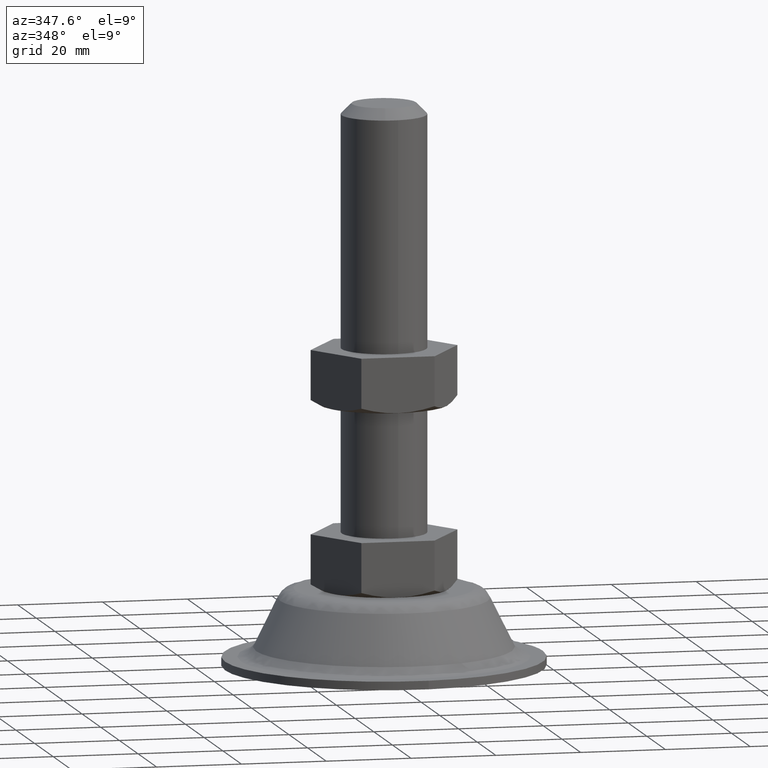
[diagram: clean part render]
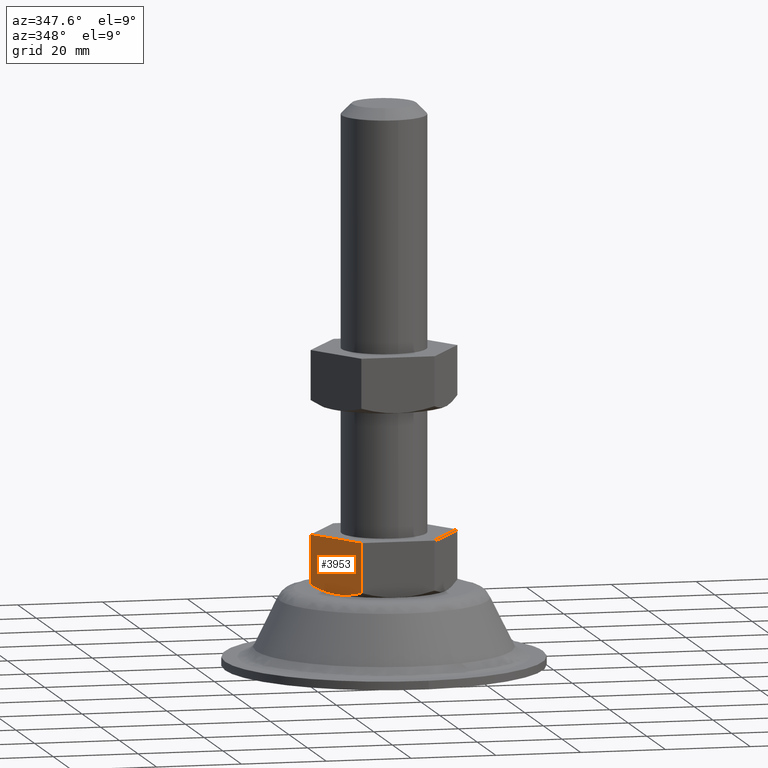
[diagram: same view with one face highlighted and labeled with its STEP entity id]
A machine part, auxiliary view. The second image highlights one B-rep face of the part: STEP entity #3953.
In plain terms, the highlighted face is a freeform B-spline surface patch.
Its self-contained STEP definition (entity closure, byte-faithful):
#2574=CARTESIAN_POINT('',(-8.639746000000001,-15.0,19.345671394023348));
#2575=VERTEX_POINT('',#2574);
#2598=CARTESIAN_POINT('',(-17.300000000000001,-2.991264E-016,19.339745951230899));
#2599=VERTEX_POINT('',#2598);
#2600=CARTESIAN_POINT('',(-17.300000000000001,-2.991264E-016,19.339745951230899));
#2601=CARTESIAN_POINT('',(-16.592941722767922,-1.224660865429841,18.931525664537769));
#2602=CARTESIAN_POINT('',(-15.880722203566380,-2.458261264219860,18.595166574800000));
#2603=CARTESIAN_POINT('',(-14.801235094892700,-4.327987790728787,18.245981053792200));
#2604=CARTESIAN_POINT('',(-14.439541958482780,-4.954458682477326,18.155540189446040));
#2605=CARTESIAN_POINT('',(-13.711936844397600,-6.214707713426938,18.033398389028559));
#2606=CARTESIAN_POINT('',(-13.346021212827770,-6.848492181359105,18.001748326998719));
#2607=CARTESIAN_POINT('',(-12.885799685170859,-7.645619253481191,18.001546577077889));
#2608=CARTESIAN_POINT('',(-12.793614645803350,-7.805288426061190,18.003465697697202));
#2609=CARTESIAN_POINT('',(-12.608961067811631,-8.125117806339862,18.011251166375121));
#2610=CARTESIAN_POINT('',(-12.516661840701410,-8.284984757892699,18.017113104138261));
#2611=CARTESIAN_POINT('',(-12.240427566274530,-8.763436558082766,18.040486526452248));
#2612=CARTESIAN_POINT('',(-12.056912984918910,-9.081293138309434,18.063800979005300));
#2613=CARTESIAN_POINT('',(-11.508210259183780,-10.031674141687260,18.155931109065261));
#2614=CARTESIAN_POINT('',(-11.144867414517430,-10.661002411966070,18.246985155436430));
#2615=CARTESIAN_POINT('',(-10.061320491401849,-12.537760743388411,18.598259512653328));
#2616=CARTESIAN_POINT('',(-9.347572270797716,-13.774008930688909,18.936281682498439));
#2617=CARTESIAN_POINT('',(-8.639746000000001,-15.0,19.345671394023348));
#2618=B_SPLINE_CURVE_WITH_KNOTS('',3,(#2600,#2601,#2602,#2603,#2604,#2605,#2606,#2607,#2608,#2609,#2610,#2611,#2612,#2613,#2614,#2615,#2616,#2617),.UNSPECIFIED.,.F.,.U.,(4,2,2,2,2,2,2,2,4),(0.0,0.250000000000001,0.375000000000001,0.500000000000001,0.531250000000001,0.562500000000001,0.625000000000001,0.750000000000001,1.0),.UNSPECIFIED.);
#2619=EDGE_CURVE('',#2599,#2575,#2618,.T.);
#3871=CARTESIAN_POINT('',(-17.300000000000001,0.0,31.0));
#3872=VERTEX_POINT('',#3871);
#3880=CARTESIAN_POINT('',(-8.639746000000001,-15.0,31.0));
#3881=VERTEX_POINT('',#3880);
#3882=CARTESIAN_POINT('',(-8.639746000000001,-15.0,31.0));
#3883=CARTESIAN_POINT('',(-17.300000000000001,0.0,31.0));
#3884=QUASI_UNIFORM_CURVE('',1,(#3882,#3883),.UNSPECIFIED.,.F.,.U.);
#3885=EDGE_CURVE('',#3881,#3872,#3884,.T.);
#3934=CARTESIAN_POINT('',(-17.732579507922260,0.749249689308522,17.352318113454590));
#3935=CARTESIAN_POINT('',(-8.207166104934263,-15.749250359860810,17.352318113454590));
#3936=CARTESIAN_POINT('',(-17.732579507922260,0.749249689308522,31.649270966330651));
#3937=CARTESIAN_POINT('',(-8.207166104934263,-15.749250359860810,31.649270966330651));
#3938=B_SPLINE_SURFACE_WITH_KNOTS('',1,1,((#3934,#3936),(#3935,#3937)),.UNSPECIFIED.,.F.,.F.,.U.,(2,2),(2,2),(0.0,19.050826868413449),(0.0,14.296952852876050),.UNSPECIFIED.);
#3939=CARTESIAN_POINT('',(-17.300000000000001,0.0,31.0));
#3940=CARTESIAN_POINT('',(-17.300000000000001,-2.991264E-016,19.339745951230899));
#3941=QUASI_UNIFORM_CURVE('',1,(#3939,#3940),.UNSPECIFIED.,.F.,.U.);
#3942=EDGE_CURVE('',#3872,#2599,#3941,.T.);
#3943=ORIENTED_EDGE('',*,*,#3942,.T.);
#3944=ORIENTED_EDGE('',*,*,#2619,.T.);
#3945=CARTESIAN_POINT('',(-8.639746000000001,-15.0,31.0));
#3946=CARTESIAN_POINT('',(-8.639746000000001,-15.0,19.345671394023348));
#3947=QUASI_UNIFORM_CURVE('',1,(#3945,#3946),.UNSPECIFIED.,.F.,.U.);
#3948=EDGE_CURVE('',#3881,#2575,#3947,.T.);
#3949=ORIENTED_EDGE('',*,*,#3948,.F.);
#3950=ORIENTED_EDGE('',*,*,#3885,.T.);
#3951=EDGE_LOOP('',(#3943,#3944,#3949,#3950));
#3952=FACE_OUTER_BOUND('',#3951,.T.);
#3953=ADVANCED_FACE('',(#3952),#3938,.T.);